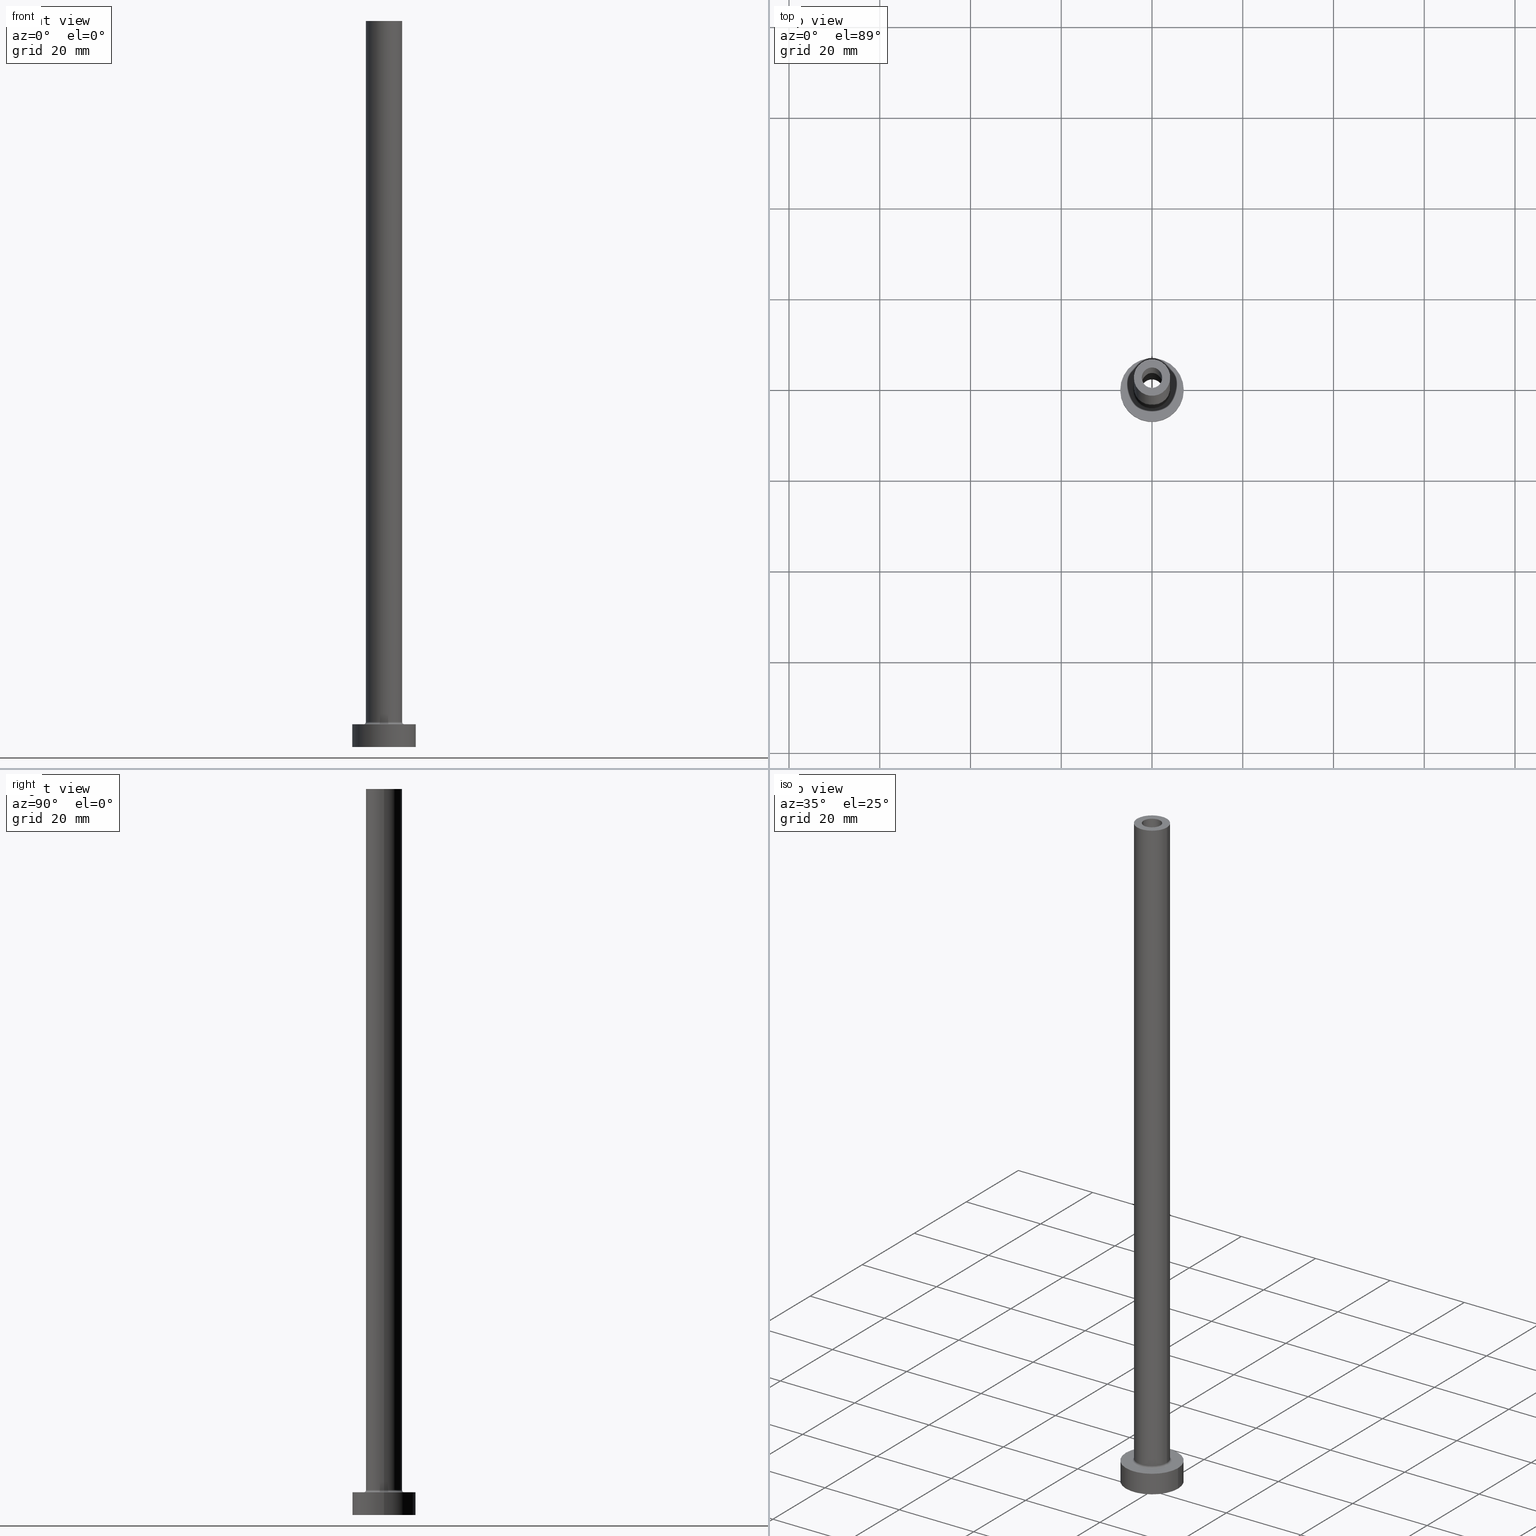
[diagram: canonical four-view strip — front | top / right | iso, engineering-drawing reading convention]
A machine part, canonical four-view strip (front | top / right | iso — engineering-drawing reading convention). The complete STEP part file that produces these views, byte-faithful:
ISO-10303-21;
HEADER;
FILE_DESCRIPTION (( 'STEP AP203' ),
    '1' );
FILE_NAME ('8017.STEP',
    '2023-02-13T17:23:19',
    ( '' ),
    ( '' ),
    'SwSTEP 2.0',
    'SolidWorks 2019',
    '' );
FILE_SCHEMA (( 'CONFIG_CONTROL_DESIGN' ));
ENDSEC;

DATA;
#1 = APPROVAL_ROLE ( '' ) ;
#2 = VERTEX_POINT ( 'NONE', #101 ) ;
#3 = CARTESIAN_POINT ( 'NONE',  ( -4.500000000000000888, 5.510910596163088569E-16, 5.000000000000002665 ) ) ;
#4 = DIRECTION ( 'NONE',  ( -0.000000000000000000, -0.000000000000000000, -1.000000000000000000 ) ) ;
#5 = VECTOR ( 'NONE', #183, 1000.000000000000000 ) ;
#6 = PERSON_AND_ORGANIZATION ( #212, #418 ) ;
#7 = FACE_OUTER_BOUND ( 'NONE', #78, .T. ) ;
#8 = CC_DESIGN_PERSON_AND_ORGANIZATION_ASSIGNMENT ( #191, #125, ( #273 ) ) ;
#9 = ORIENTED_EDGE ( 'NONE', *, *, #37, .F. ) ;
#10 = AXIS2_PLACEMENT_3D ( 'NONE', #140, #97, #241 ) ;
#11 = CARTESIAN_POINT ( 'NONE',  ( 4.500000000000000888, 0.000000000000000000, 5.500000000000005329 ) ) ;
#12 = ORIENTED_EDGE ( 'NONE', *, *, #145, .T. ) ;
#13 = FACE_OUTER_BOUND ( 'NONE', #427, .T. ) ;
#14 = EDGE_CURVE ( 'NONE', #58, #109, #235, .T. ) ;
#15 = DIRECTION ( 'NONE',  ( 1.000000000000000000, 0.000000000000000000, 0.000000000000000000 ) ) ;
#16 = COORDINATED_UNIVERSAL_TIME_OFFSET ( 1, 0, .AHEAD. ) ;
#17 = DIRECTION ( 'NONE',  ( 0.000000000000000000, 0.000000000000000000, -1.000000000000000000 ) ) ;
#18 = EDGE_CURVE ( 'NONE', #395, #258, #360, .T. ) ;
#19 = CARTESIAN_POINT ( 'NONE',  ( 4.000000000000000000, 4.898587196589412829E-16, 5.500000000000005329 ) ) ;
#20 = VERTEX_POINT ( 'NONE', #3 ) ;
#21 = PLANE ( 'NONE',  #236 ) ;
#22 = AXIS2_PLACEMENT_3D ( 'NONE', #68, #431, #184 ) ;
#23 = CC_DESIGN_APPROVAL ( #397, ( #273 ) ) ;
#24 = DIRECTION ( 'NONE',  ( 1.000000000000000000, 0.000000000000000000, -0.000000000000000000 ) ) ;
#25 = VERTEX_POINT ( 'NONE', #293 ) ;
#26 = DIRECTION ( 'NONE',  ( 0.000000000000000000, 0.000000000000000000, 1.000000000000000000 ) ) ;
#27 = DIRECTION ( 'NONE',  ( -0.000000000000000000, -0.000000000000000000, -1.000000000000000000 ) ) ;
#28 = CARTESIAN_POINT ( 'NONE',  ( 0.000000000000000000, 0.000000000000000000, 5.000000000000000000 ) ) ;
#29 = ORIENTED_EDGE ( 'NONE', *, *, #432, .T. ) ;
#30 = DIRECTION ( 'NONE',  ( -1.000000000000000000, 0.000000000000000000, 0.000000000000000000 ) ) ;
#31 = CYLINDRICAL_SURFACE ( 'NONE', #361, 7.000000000000000000 ) ;
#32 = MECHANICAL_CONTEXT ( 'NONE', #289, 'mechanical' ) ;
#33 = DIRECTION ( 'NONE',  ( 0.000000000000000000, 0.000000000000000000, 1.000000000000000000 ) ) ;
#34 = AXIS2_PLACEMENT_3D ( 'NONE', #442, #434, #441 ) ;
#35 = AXIS2_PLACEMENT_3D ( 'NONE', #96, #57, #355 ) ;
#36 = LINE ( 'NONE', #64, #5 ) ;
#37 = EDGE_CURVE ( 'NONE', #344, #2, #260, .T. ) ;
#38 = DIRECTION ( 'NONE',  ( 1.000000000000000000, 0.000000000000000000, 0.000000000000000000 ) ) ;
#39 = PERSON_AND_ORGANIZATION_ROLE ( 'design_owner' ) ;
#40 = VERTEX_POINT ( 'NONE', #221 ) ;
#41 =( LENGTH_UNIT ( ) NAMED_UNIT ( * ) SI_UNIT ( .MILLI., .METRE. ) );
#42 = AXIS2_PLACEMENT_3D ( 'NONE', #334, #4, #149 ) ;
#43 = ORIENTED_EDGE ( 'NONE', *, *, #311, .T. ) ;
#44 = DIRECTION ( 'NONE',  ( 0.000000000000000000, 0.000000000000000000, 1.000000000000000000 ) ) ;
#45 = EDGE_CURVE ( 'NONE', #239, #114, #53, .T. ) ;
#46 = DIRECTION ( 'NONE',  ( 0.000000000000000000, -1.000000000000000000, 0.000000000000000000 ) ) ;
#47 = ADVANCED_BREP_SHAPE_REPRESENTATION ( '8017', ( #199, #282 ), #93 ) ;
#48 = CC_DESIGN_DATE_AND_TIME_ASSIGNMENT ( #264, #310, ( #171 ) ) ;
#49 = AXIS2_PLACEMENT_3D ( 'NONE', #222, #33, #75 ) ;
#50 = CARTESIAN_POINT ( 'NONE',  ( 0.000000000000000000, 0.000000000000000000, 121.7882250993908713 ) ) ;
#51 = EDGE_CURVE ( 'NONE', #298, #403, #119, .T. ) ;
#52 = DIRECTION ( 'NONE',  ( 0.000000000000000000, 0.000000000000000000, -1.000000000000000000 ) ) ;
#53 = CIRCLE ( 'NONE', #330, 0.5000000000000004441 ) ;
#54 = CIRCLE ( 'NONE', #409, 2.399999999999999911 ) ;
#55 = ADVANCED_FACE ( 'NONE', ( #190 ), #245, .F. ) ;
#56 = ORIENTED_EDGE ( 'NONE', *, *, #89, .F. ) ;
#57 = DIRECTION ( 'NONE',  ( 0.000000000000000000, 0.000000000000000000, 1.000000000000000000 ) ) ;
#58 = VERTEX_POINT ( 'NONE', #300 ) ;
#59 = ORIENTED_EDGE ( 'NONE', *, *, #145, .F. ) ;
#60 = FACE_OUTER_BOUND ( 'NONE', #449, .T. ) ;
#61 = ORIENTED_EDGE ( 'NONE', *, *, #375, .T. ) ;
#62 = TOROIDAL_SURFACE ( 'NONE', #35, 4.500000000000000888, 0.5000000000000000000 ) ;
#63 = LOCAL_TIME ( 18, 23, 19.00000000000000000, #84 ) ;
#64 = CARTESIAN_POINT ( 'NONE',  ( -2.250000000000000000, 0.000000000000000000, 160.0000000000000000 ) ) ;
#65 = ORIENTED_EDGE ( 'NONE', *, *, #18, .F. ) ;
#66 = DIRECTION ( 'NONE',  ( -0.000000000000000000, -0.000000000000000000, -1.000000000000000000 ) ) ;
#67 = COORDINATED_UNIVERSAL_TIME_OFFSET ( 1, 0, .AHEAD. ) ;
#68 = CARTESIAN_POINT ( 'NONE',  ( 0.000000000000000000, 0.000000000000000000, 5.000000000000000000 ) ) ;
#69 = AXIS2_PLACEMENT_3D ( 'NONE', #72, #113, #73 ) ;
#70 = SECURITY_CLASSIFICATION ( '', '', #303 ) ;
#71 = APPROVAL_DATE_TIME ( #215, #308 ) ;
#72 = CARTESIAN_POINT ( 'NONE',  ( 0.000000000000000000, 0.000000000000000000, 115.0000000000000000 ) ) ;
#73 = DIRECTION ( 'NONE',  ( 1.000000000000000000, 0.000000000000000000, -0.000000000000000000 ) ) ;
#74 = DIRECTION ( 'NONE',  ( 1.000000000000000000, 0.000000000000000000, 0.000000000000000000 ) ) ;
#75 = DIRECTION ( 'NONE',  ( 1.000000000000000000, 0.000000000000000000, 0.000000000000000000 ) ) ;
#76 = AXIS2_PLACEMENT_3D ( 'NONE', #380, #44, #399 ) ;
#77 = EDGE_CURVE ( 'NONE', #403, #298, #332, .T. ) ;
#78 = EDGE_LOOP ( 'NONE', ( #158, #132, #400, #206 ) ) ;
#79 = APPROVAL_DATE_TIME ( #262, #157 ) ;
#80 = VERTEX_POINT ( 'NONE', #266 ) ;
#81 = DATE_AND_TIME ( #121, #63 ) ;
#82 = FACE_OUTER_BOUND ( 'NONE', #136, .T. ) ;
#83 = DIRECTION ( 'NONE',  ( 1.000000000000000000, 0.000000000000000000, 0.000000000000000000 ) ) ;
#84 = COORDINATED_UNIVERSAL_TIME_OFFSET ( 1, 0, .AHEAD. ) ;
#85 = VECTOR ( 'NONE', #66, 1000.000000000000000 ) ;
#86 = APPROVAL_PERSON_ORGANIZATION ( #458, #308, #1 ) ;
#87 = DIRECTION ( 'NONE',  ( 1.000000000000000000, 0.000000000000000000, 0.000000000000000000 ) ) ;
#88 = ORIENTED_EDGE ( 'NONE', *, *, #186, .T. ) ;
#89 = EDGE_CURVE ( 'NONE', #80, #40, #251, .T. ) ;
#90 = DIRECTION ( 'NONE',  ( 0.000000000000000000, 0.000000000000000000, 1.000000000000000000 ) ) ;
#91 = FACE_BOUND ( 'NONE', #233, .T. ) ;
#92 = CIRCLE ( 'NONE', #459, 4.000000000000000000 ) ;
#93 =( GEOMETRIC_REPRESENTATION_CONTEXT ( 3 ) GLOBAL_UNCERTAINTY_ASSIGNED_CONTEXT ( ( #110 ) ) GLOBAL_UNIT_ASSIGNED_CONTEXT ( ( #41, #424, #218 ) ) REPRESENTATION_CONTEXT ( 'NONE', 'WORKASPACE' ) );
#94 = DIRECTION ( 'NONE',  ( 0.000000000000000000, 0.000000000000000000, 1.000000000000000000 ) ) ;
#95 = ORIENTED_EDGE ( 'NONE', *, *, #271, .F. ) ;
#96 = CARTESIAN_POINT ( 'NONE',  ( 0.000000000000000000, 0.000000000000000000, 5.500000000000005329 ) ) ;
#97 = DIRECTION ( 'NONE',  ( 0.000000000000000000, 0.000000000000000000, -1.000000000000000000 ) ) ;
#98 = ORIENTED_EDGE ( 'NONE', *, *, #244, .T. ) ;
#99 = EDGE_CURVE ( 'NONE', #239, #25, #92, .T. ) ;
#100 = DIRECTION ( 'NONE',  ( 1.000000000000000000, 0.000000000000000000, 0.000000000000000000 ) ) ;
#101 = CARTESIAN_POINT ( 'NONE',  ( 2.399999999999999911, 2.939152317953647106E-16, 0.000000000000000000 ) ) ;
#102 = ADVANCED_FACE ( 'NONE', ( #323, #371 ), #169, .T. ) ;
#103 = FACE_OUTER_BOUND ( 'NONE', #329, .T. ) ;
#104 = CYLINDRICAL_SURFACE ( 'NONE', #120, 7.000000000000000000 ) ;
#105 = VECTOR ( 'NONE', #419, 1000.000000000000000 ) ;
#106 = LOCAL_TIME ( 18, 23, 19.00000000000000000, #339 ) ;
#107 = CARTESIAN_POINT ( 'NONE',  ( -7.000000000000000000, 0.000000000000000000, 5.000000000000000000 ) ) ;
#108 = CARTESIAN_POINT ( 'NONE',  ( 0.000000000000000000, 0.000000000000000000, 5.000000000000000000 ) ) ;
#109 = VERTEX_POINT ( 'NONE', #322 ) ;
#110 = UNCERTAINTY_MEASURE_WITH_UNIT (LENGTH_MEASURE( 1.000000000000000082E-05 ), #41, 'distance_accuracy_value', 'NONE');
#111 = AXIS2_PLACEMENT_3D ( 'NONE', #209, #328, #363 ) ;
#112 = CC_DESIGN_SECURITY_CLASSIFICATION ( #70, ( #273 ) ) ;
#113 = DIRECTION ( 'NONE',  ( 0.000000000000000000, 0.000000000000000000, 1.000000000000000000 ) ) ;
#114 = VERTEX_POINT ( 'NONE', #195 ) ;
#115 = CARTESIAN_POINT ( 'NONE',  ( 0.000000000000000000, 0.000000000000000000, 5.500000000000005329 ) ) ;
#116 = DIRECTION ( 'NONE',  ( 1.000000000000000000, 0.000000000000000000, 0.000000000000000000 ) ) ;
#117 = ORIENTED_EDGE ( 'NONE', *, *, #18, .T. ) ;
#118 = CALENDAR_DATE ( 2023, 13, 2 ) ;
#119 = CIRCLE ( 'NONE', #34, 4.000000000000000000 ) ;
#120 = AXIS2_PLACEMENT_3D ( 'NONE', #28, #205, #175 ) ;
#121 = CALENDAR_DATE ( 2023, 13, 2 ) ;
#122 = LOCAL_TIME ( 18, 23, 19.00000000000000000, #67 ) ;
#123 = DIRECTION ( 'NONE',  ( 0.000000000000000000, 0.000000000000000000, 1.000000000000000000 ) ) ;
#124 = EDGE_CURVE ( 'NONE', #395, #80, #137, .T. ) ;
#125 = PERSON_AND_ORGANIZATION_ROLE ( 'creator' ) ;
#126 = DIRECTION ( 'NONE',  ( 0.000000000000000000, 0.000000000000000000, 1.000000000000000000 ) ) ;
#127 = ORIENTED_EDGE ( 'NONE', *, *, #278, .T. ) ;
#128 = AXIS2_PLACEMENT_3D ( 'NONE', #255, #364, #74 ) ;
#129 = ORIENTED_EDGE ( 'NONE', *, *, #425, .F. ) ;
#130 = DIRECTION ( 'NONE',  ( 1.000000000000000000, 0.000000000000000000, 0.000000000000000000 ) ) ;
#131 = DIRECTION ( 'NONE',  ( 0.000000000000000000, 0.000000000000000000, -1.000000000000000000 ) ) ;
#132 = ORIENTED_EDGE ( 'NONE', *, *, #425, .T. ) ;
#133 = EDGE_LOOP ( 'NONE', ( #43, #29 ) ) ;
#134 = EDGE_CURVE ( 'NONE', #109, #58, #373, .T. ) ;
#135 = ORIENTED_EDGE ( 'NONE', *, *, #438, .F. ) ;
#136 = EDGE_LOOP ( 'NONE', ( #249, #318, #210, #187 ) ) ;
#137 = LINE ( 'NONE', #384, #281 ) ;
#138 = CARTESIAN_POINT ( 'NONE',  ( 7.000000000000000000, 8.572527594031473190E-16, 5.000000000000000000 ) ) ;
#139 = CIRCLE ( 'NONE', #351, 2.399999999999999911 ) ;
#140 = CARTESIAN_POINT ( 'NONE',  ( 0.000000000000000000, 0.000000000000000000, 160.0000000000000000 ) ) ;
#141 = ADVANCED_FACE ( 'NONE', ( #13 ), #379, .F. ) ;
#142 = FACE_BOUND ( 'NONE', #343, .T. ) ;
#143 = PRODUCT ( '8017', '8017', '', ( #32 ) ) ;
#144 = DIRECTION ( 'NONE',  ( -0.000000000000000000, -0.000000000000000000, -1.000000000000000000 ) ) ;
#145 = EDGE_CURVE ( 'NONE', #277, #2, #160, .T. ) ;
#146 = APPROVAL_STATUS ( 'not_yet_approved' ) ;
#147 = AXIS2_PLACEMENT_3D ( 'NONE', #203, #359, #242 ) ;
#148 = AXIS2_PLACEMENT_3D ( 'NONE', #50, #52, #313 ) ;
#149 = DIRECTION ( 'NONE',  ( 1.000000000000000000, 0.000000000000000000, 0.000000000000000000 ) ) ;
#150 = DIRECTION ( 'NONE',  ( -1.000000000000000000, 0.000000000000000000, 0.000000000000000000 ) ) ;
#151 = EDGE_LOOP ( 'NONE', ( #374, #433, #452, #135 ) ) ;
#152 = CARTESIAN_POINT ( 'NONE',  ( 0.000000000000000000, 0.000000000000000000, 0.000000000000000000 ) ) ;
#153 = DIRECTION ( 'NONE',  ( 0.000000000000000000, 0.000000000000000000, 1.000000000000000000 ) ) ;
#154 = CIRCLE ( 'NONE', #207, 7.000000000000000000 ) ;
#155 = PERSON_AND_ORGANIZATION ( #212, #418 ) ;
#156 = CIRCLE ( 'NONE', #22, 4.500000000000000888 ) ;
#157 = APPROVAL ( #259, 'NEUR�EN�' ) ;
#158 = ORIENTED_EDGE ( 'NONE', *, *, #77, .F. ) ;
#159 = CALENDAR_DATE ( 2023, 13, 2 ) ;
#160 = LINE ( 'NONE', #346, #342 ) ;
#161 = LINE ( 'NONE', #107, #290 ) ;
#162 = ORIENTED_EDGE ( 'NONE', *, *, #232, .T. ) ;
#163 = FACE_BOUND ( 'NONE', #383, .T. ) ;
#164 = CIRCLE ( 'NONE', #417, 0.5000000000000004441 ) ;
#165 = CARTESIAN_POINT ( 'NONE',  ( 0.000000000000000000, 0.000000000000000000, 160.0000000000000000 ) ) ;
#166 = EDGE_LOOP ( 'NONE', ( #320, #357, #408, #167 ) ) ;
#167 = ORIENTED_EDGE ( 'NONE', *, *, #244, .F. ) ;
#168 = CARTESIAN_POINT ( 'NONE',  ( -4.500000000000000888, 5.510910596163089556E-16, 5.500000000000005329 ) ) ;
#169 = PLANE ( 'NONE',  #445 ) ;
#170 = CARTESIAN_POINT ( 'NONE',  ( -4.000000000000000000, 0.000000000000000000, 160.0000000000000000 ) ) ;
#171 = PRODUCT_DEFINITION ( 'NEZN�M�', '', #273, #220 ) ;
#172 = ORIENTED_EDGE ( 'NONE', *, *, #232, .F. ) ;
#173 = CYLINDRICAL_SURFACE ( 'NONE', #430, 2.399999999999999911 ) ;
#174 = CARTESIAN_POINT ( 'NONE',  ( 0.000000000000000000, 0.000000000000000000, 115.0000000000000000 ) ) ;
#175 = DIRECTION ( 'NONE',  ( -1.000000000000000000, 0.000000000000000000, 0.000000000000000000 ) ) ;
#176 = FACE_OUTER_BOUND ( 'NONE', #166, .T. ) ;
#177 = DIRECTION ( 'NONE',  ( 1.000000000000000000, 0.000000000000000000, 0.000000000000000000 ) ) ;
#178 = FACE_OUTER_BOUND ( 'NONE', #317, .T. ) ;
#179 = PERSON_AND_ORGANIZATION ( #212, #418 ) ;
#180 = AXIS2_PLACEMENT_3D ( 'NONE', #406, #123, #316 ) ;
#181 = CC_DESIGN_APPROVAL ( #157, ( #70 ) ) ;
#182 = ORIENTED_EDGE ( 'NONE', *, *, #311, .F. ) ;
#183 = DIRECTION ( 'NONE',  ( 0.000000000000000000, 0.000000000000000000, -1.000000000000000000 ) ) ;
#184 = DIRECTION ( 'NONE',  ( 1.000000000000000000, 0.000000000000000000, 0.000000000000000000 ) ) ;
#185 = PERSON_AND_ORGANIZATION ( #212, #418 ) ;
#186 = EDGE_CURVE ( 'NONE', #25, #20, #164, .T. ) ;
#187 = ORIENTED_EDGE ( 'NONE', *, *, #204, .F. ) ;
#188 = DIRECTION ( 'NONE',  ( 0.000000000000000000, 0.000000000000000000, 1.000000000000000000 ) ) ;
#189 = PERSON_AND_ORGANIZATION ( #212, #418 ) ;
#190 = FACE_OUTER_BOUND ( 'NONE', #377, .T. ) ;
#191 = PERSON_AND_ORGANIZATION ( #212, #418 ) ;
#192 = CARTESIAN_POINT ( 'NONE',  ( -2.399999999999999911, 0.000000000000000000, 0.000000000000000000 ) ) ;
#193 = ORIENTED_EDGE ( 'NONE', *, *, #89, .T. ) ;
#194 = EDGE_LOOP ( 'NONE', ( #95, #268 ) ) ;
#195 = CARTESIAN_POINT ( 'NONE',  ( 4.500000000000000888, 0.000000000000000000, 5.000000000000002665 ) ) ;
#196 = AXIS2_PLACEMENT_3D ( 'NONE', #152, #252, #396 ) ;
#197 = CIRCLE ( 'NONE', #49, 7.000000000000000000 ) ;
#198 = FACE_OUTER_BOUND ( 'NONE', #133, .T. ) ;
#199 = MANIFOLD_SOLID_BREP ( 'Odebrat vysunut�m4', #288 ) ;
#200 = ADVANCED_FACE ( 'NONE', ( #163, #198 ), #21, .T. ) ;
#201 = ORIENTED_EDGE ( 'NONE', *, *, #124, .F. ) ;
#202 = EDGE_LOOP ( 'NONE', ( #201, #117, #338, #56 ) ) ;
#203 = CARTESIAN_POINT ( 'NONE',  ( 0.000000000000000000, 0.000000000000000000, 160.0000000000000000 ) ) ;
#204 = EDGE_CURVE ( 'NONE', #20, #114, #156, .T. ) ;
#205 = DIRECTION ( 'NONE',  ( -0.000000000000000000, -0.000000000000000000, -1.000000000000000000 ) ) ;
#206 = ORIENTED_EDGE ( 'NONE', *, *, #375, .F. ) ;
#207 = AXIS2_PLACEMENT_3D ( 'NONE', #214, #416, #366 ) ;
#208 = LINE ( 'NONE', #348, #105 ) ;
#209 = CARTESIAN_POINT ( 'NONE',  ( 0.000000000000000000, 0.000000000000000000, 160.0000000000000000 ) ) ;
#210 = ORIENTED_EDGE ( 'NONE', *, *, #45, .T. ) ;
#211 = CARTESIAN_POINT ( 'NONE',  ( 2.250000000000000000, 2.755455298081543792E-16, 160.0000000000000000 ) ) ;
#212 = PERSON ( 'NEUR�EN�', 'NEUR�EN�', 'NEUR�EN�', ('NEUR�EN�'), ('NEUR�EN�'), ('NEUR�EN�') ) ;
#213 = EDGE_CURVE ( 'NONE', #114, #20, #225, .T. ) ;
#214 = CARTESIAN_POINT ( 'NONE',  ( 0.000000000000000000, 0.000000000000000000, 5.000000000000000000 ) ) ;
#215 = DATE_AND_TIME ( #429, #122 ) ;
#216 = AXIS2_PLACEMENT_3D ( 'NONE', #306, #439, #83 ) ;
#217 = CC_DESIGN_PERSON_AND_ORGANIZATION_ASSIGNMENT ( #185, #335, ( #171 ) ) ;
#218 =( NAMED_UNIT ( * ) SI_UNIT ( $, .STERADIAN. ) SOLID_ANGLE_UNIT ( ) );
#219 = CC_DESIGN_PERSON_AND_ORGANIZATION_ASSIGNMENT ( #436, #440, ( #70 ) ) ;
#220 = DESIGN_CONTEXT ( 'detailed design', #420, 'design' ) ;
#221 = CARTESIAN_POINT ( 'NONE',  ( -2.250000000000000000, 0.000000000000000000, 115.0000000000000000 ) ) ;
#222 = CARTESIAN_POINT ( 'NONE',  ( 0.000000000000000000, 0.000000000000000000, 5.000000000000000000 ) ) ;
#223 = EDGE_CURVE ( 'NONE', #25, #239, #381, .T. ) ;
#224 = CARTESIAN_POINT ( 'NONE',  ( 0.000000000000000000, 0.000000000000000000, 5.500000000000005329 ) ) ;
#225 = CIRCLE ( 'NONE', #42, 4.500000000000000888 ) ;
#226 = DATE_AND_TIME ( #159, #382 ) ;
#227 = EDGE_CURVE ( 'NONE', #258, #395, #352, .T. ) ;
#228 = APPROVAL_DATE_TIME ( #226, #397 ) ;
#229 = AXIS2_PLACEMENT_3D ( 'NONE', #356, #26, #283 ) ;
#230 = CARTESIAN_POINT ( 'NONE',  ( 0.000000000000000000, 0.000000000000000000, 160.0000000000000000 ) ) ;
#231 = ORIENTED_EDGE ( 'NONE', *, *, #227, .F. ) ;
#232 = EDGE_CURVE ( 'NONE', #450, #344, #294, .T. ) ;
#233 = EDGE_LOOP ( 'NONE', ( #9, #414 ) ) ;
#234 = ORIENTED_EDGE ( 'NONE', *, *, #213, .F. ) ;
#235 = CIRCLE ( 'NONE', #350, 7.000000000000000000 ) ;
#236 = AXIS2_PLACEMENT_3D ( 'NONE', #315, #353, #24 ) ;
#237 = EDGE_CURVE ( 'NONE', #354, #58, #208, .T. ) ;
#238 = CC_DESIGN_DATE_AND_TIME_ASSIGNMENT ( #81, #341, ( #70 ) ) ;
#239 = VERTEX_POINT ( 'NONE', #19 ) ;
#240 = DIRECTION ( 'NONE',  ( 1.000000000000000000, 0.000000000000000000, -0.000000000000000000 ) ) ;
#241 = DIRECTION ( 'NONE',  ( -1.000000000000000000, 0.000000000000000000, 0.000000000000000000 ) ) ;
#242 = DIRECTION ( 'NONE',  ( 1.000000000000000000, 0.000000000000000000, 0.000000000000000000 ) ) ;
#243 = LINE ( 'NONE', #170, #305 ) ;
#244 = EDGE_CURVE ( 'NONE', #387, #109, #161, .T. ) ;
#245 = TOROIDAL_SURFACE ( 'NONE', #216, 4.500000000000000888, 0.5000000000000000000 ) ;
#246 = CC_DESIGN_APPROVAL ( #308, ( #171 ) ) ;
#247 = FACE_OUTER_BOUND ( 'NONE', #151, .T. ) ;
#248 = CYLINDRICAL_SURFACE ( 'NONE', #111, 2.250000000000000000 ) ;
#249 = ORIENTED_EDGE ( 'NONE', *, *, #186, .F. ) ;
#250 = CC_DESIGN_PERSON_AND_ORGANIZATION_ASSIGNMENT ( #179, #39, ( #143 ) ) ;
#251 = CIRCLE ( 'NONE', #76, 2.250000000000000000 ) ;
#252 = DIRECTION ( 'NONE',  ( -0.000000000000000000, -0.000000000000000000, -1.000000000000000000 ) ) ;
#253 = ORIENTED_EDGE ( 'NONE', *, *, #213, .T. ) ;
#254 = CARTESIAN_POINT ( 'NONE',  ( -2.399999999999999911, 0.000000000000000000, 115.0000000000000000 ) ) ;
#255 = CARTESIAN_POINT ( 'NONE',  ( 0.000000000000000000, 0.000000000000000000, 160.0000000000000000 ) ) ;
#256 = APPLICATION_PROTOCOL_DEFINITION ( 'international standard', 'config_control_design', 1994, #289 ) ;
#257 = DIRECTION ( 'NONE',  ( 0.000000000000000000, 0.000000000000000000, -1.000000000000000000 ) ) ;
#258 = VERTEX_POINT ( 'NONE', #413 ) ;
#259 = APPROVAL_STATUS ( 'not_yet_approved' ) ;
#260 = CIRCLE ( 'NONE', #196, 2.399999999999999911 ) ;
#261 = AXIS2_PLACEMENT_3D ( 'NONE', #115, #153, #426 ) ;
#262 = DATE_AND_TIME ( #378, #292 ) ;
#263 = CARTESIAN_POINT ( 'NONE',  ( 0.000000000000000000, 0.000000000000000000, 160.0000000000000000 ) ) ;
#264 = DATE_AND_TIME ( #118, #106 ) ;
#265 = DIRECTION ( 'NONE',  ( -0.000000000000000000, -0.000000000000000000, -1.000000000000000000 ) ) ;
#266 = CARTESIAN_POINT ( 'NONE',  ( 2.250000000000000000, 2.755455298081543792E-16, 115.0000000000000000 ) ) ;
#267 = PERSON_AND_ORGANIZATION_ROLE ( 'design_supplier' ) ;
#268 = ORIENTED_EDGE ( 'NONE', *, *, #345, .F. ) ;
#269 = DIRECTION ( 'NONE',  ( 0.000000000000000000, 0.000000000000000000, 1.000000000000000000 ) ) ;
#270 = CIRCLE ( 'NONE', #337, 2.250000000000000000 ) ;
#271 = EDGE_CURVE ( 'NONE', #450, #277, #54, .T. ) ;
#272 = COORDINATED_UNIVERSAL_TIME_OFFSET ( 1, 0, .AHEAD. ) ;
#273 = PRODUCT_DEFINITION_FORMATION_WITH_SPECIFIED_SOURCE ( 'LIBOVOLN�', '', #143, .NOT_KNOWN. ) ;
#274 = DIRECTION ( 'NONE',  ( -1.000000000000000000, 1.224646799147351482E-16, 0.000000000000000000 ) ) ;
#275 = ORIENTED_EDGE ( 'NONE', *, *, #134, .T. ) ;
#276 = ORIENTED_EDGE ( 'NONE', *, *, #345, .T. ) ;
#277 = VERTEX_POINT ( 'NONE', #446 ) ;
#278 = EDGE_CURVE ( 'NONE', #2, #344, #139, .T. ) ;
#279 = ORIENTED_EDGE ( 'NONE', *, *, #237, .F. ) ;
#280 = EDGE_LOOP ( 'NONE', ( #231, #65 ) ) ;
#281 = VECTOR ( 'NONE', #131, 1000.000000000000000 ) ;
#282 = AXIS2_PLACEMENT_3D ( 'NONE', #331, #333, #116 ) ;
#283 = DIRECTION ( 'NONE',  ( 1.000000000000000000, 0.000000000000000000, -0.000000000000000000 ) ) ;
#284 = DIRECTION ( 'NONE',  ( -0.000000000000000000, -0.000000000000000000, -1.000000000000000000 ) ) ;
#285 = ORIENTED_EDGE ( 'NONE', *, *, #223, .F. ) ;
#286 = FACE_OUTER_BOUND ( 'NONE', #194, .T. ) ;
#287 = LINE ( 'NONE', #391, #85 ) ;
#288 = CLOSED_SHELL ( 'NONE', ( #386, #376, #55, #326, #407, #297, #200, #368, #388, #102, #347, #141, #304, #296 ) ) ;
#289 = APPLICATION_CONTEXT ( 'configuration controlled 3d designs of mechanical parts and assemblies' ) ;
#290 = VECTOR ( 'NONE', #284, 1000.000000000000000 ) ;
#291 = CARTESIAN_POINT ( 'NONE',  ( 0.000000000000000000, 0.000000000000000000, 0.000000000000000000 ) ) ;
#292 = LOCAL_TIME ( 18, 23, 19.00000000000000000, #272 ) ;
#293 = CARTESIAN_POINT ( 'NONE',  ( -4.000000000000000000, 0.000000000000000000, 5.500000000000005329 ) ) ;
#294 = LINE ( 'NONE', #421, #437 ) ;
#295 = CARTESIAN_POINT ( 'NONE',  ( -7.000000000000000000, 0.000000000000000000, 5.000000000000000000 ) ) ;
#296 = ADVANCED_FACE ( 'NONE', ( #456 ), #312, .F. ) ;
#297 = ADVANCED_FACE ( 'NONE', ( #60 ), #104, .T. ) ;
#298 = VERTEX_POINT ( 'NONE', #325 ) ;
#299 = AXIS2_PLACEMENT_3D ( 'NONE', #457, #365, #30 ) ;
#300 = CARTESIAN_POINT ( 'NONE',  ( 7.000000000000000000, 8.572527594031473190E-16, 0.000000000000000000 ) ) ;
#301 = SHAPE_DEFINITION_REPRESENTATION ( #390, #47 ) ;
#302 = ORIENTED_EDGE ( 'NONE', *, *, #77, .T. ) ;
#303 = SECURITY_CLASSIFICATION_LEVEL ( 'unclassified' ) ;
#304 = ADVANCED_FACE ( 'NONE', ( #142, #286 ), #389, .F. ) ;
#305 = VECTOR ( 'NONE', #27, 1000.000000000000000 ) ;
#306 = CARTESIAN_POINT ( 'NONE',  ( 0.000000000000000000, 0.000000000000000000, 5.500000000000005329 ) ) ;
#307 = APPROVAL_PERSON_ORGANIZATION ( #155, #157, #401 ) ;
#308 = APPROVAL ( #146, 'NEUR�EN�' ) ;
#309 = EDGE_LOOP ( 'NONE', ( #435, #302 ) ) ;
#310 = DATE_TIME_ROLE ( 'creation_date' ) ;
#311 = EDGE_CURVE ( 'NONE', #387, #354, #197, .T. ) ;
#312 = CYLINDRICAL_SURFACE ( 'NONE', #10, 2.250000000000000000 ) ;
#313 = DIRECTION ( 'NONE',  ( -1.000000000000000000, 0.000000000000000000, 0.000000000000000000 ) ) ;
#314 = AXIS2_PLACEMENT_3D ( 'NONE', #165, #265, #402 ) ;
#315 = CARTESIAN_POINT ( 'NONE',  ( 0.000000000000000000, 0.000000000000000000, 5.000000000000000000 ) ) ;
#316 = DIRECTION ( 'NONE',  ( 1.000000000000000000, 0.000000000000000000, 0.000000000000000000 ) ) ;
#317 = EDGE_LOOP ( 'NONE', ( #129, #447, #61, #393 ) ) ;
#318 = ORIENTED_EDGE ( 'NONE', *, *, #99, .F. ) ;
#319 = CC_DESIGN_PERSON_AND_ORGANIZATION_ASSIGNMENT ( #189, #267, ( #273 ) ) ;
#320 = ORIENTED_EDGE ( 'NONE', *, *, #432, .F. ) ;
#321 = ORIENTED_EDGE ( 'NONE', *, *, #14, .F. ) ;
#322 = CARTESIAN_POINT ( 'NONE',  ( -7.000000000000000000, 0.000000000000000000, 0.000000000000000000 ) ) ;
#323 = FACE_BOUND ( 'NONE', #280, .T. ) ;
#324 = DIRECTION ( 'NONE',  ( 0.000000000000000000, 0.000000000000000000, -1.000000000000000000 ) ) ;
#325 = CARTESIAN_POINT ( 'NONE',  ( -4.000000000000000000, 0.000000000000000000, 160.0000000000000000 ) ) ;
#326 = ADVANCED_FACE ( 'NONE', ( #7 ), #340, .T. ) ;
#327 = DIRECTION ( 'NONE',  ( -0.000000000000000000, -0.000000000000000000, -1.000000000000000000 ) ) ;
#328 = DIRECTION ( 'NONE',  ( 0.000000000000000000, 0.000000000000000000, -1.000000000000000000 ) ) ;
#329 = EDGE_LOOP ( 'NONE', ( #358, #321 ) ) ;
#330 = AXIS2_PLACEMENT_3D ( 'NONE', #11, #46, #257 ) ;
#331 = CARTESIAN_POINT ( 'NONE',  ( 0.000000000000000000, 0.000000000000000000, 0.000000000000000000 ) ) ;
#332 = CIRCLE ( 'NONE', #370, 4.000000000000000000 ) ;
#333 = DIRECTION ( 'NONE',  ( 0.000000000000000000, 0.000000000000000000, 1.000000000000000000 ) ) ;
#334 = CARTESIAN_POINT ( 'NONE',  ( 0.000000000000000000, 0.000000000000000000, 5.000000000000000000 ) ) ;
#335 = PERSON_AND_ORGANIZATION_ROLE ( 'creator' ) ;
#336 = DIRECTION ( 'NONE',  ( 0.000000000000000000, 0.000000000000000000, 1.000000000000000000 ) ) ;
#337 = AXIS2_PLACEMENT_3D ( 'NONE', #392, #336, #38 ) ;
#338 = ORIENTED_EDGE ( 'NONE', *, *, #438, .T. ) ;
#339 = COORDINATED_UNIVERSAL_TIME_OFFSET ( 1, 0, .AHEAD. ) ;
#340 = CYLINDRICAL_SURFACE ( 'NONE', #314, 4.000000000000000000 ) ;
#341 = DATE_TIME_ROLE ( 'classification_date' ) ;
#342 = VECTOR ( 'NONE', #17, 1000.000000000000000 ) ;
#343 = EDGE_LOOP ( 'NONE', ( #398, #193 ) ) ;
#344 = VERTEX_POINT ( 'NONE', #192 ) ;
#345 = EDGE_CURVE ( 'NONE', #277, #450, #405, .T. ) ;
#346 = CARTESIAN_POINT ( 'NONE',  ( 2.399999999999999911, 2.939152317953647106E-16, 121.7882250993908713 ) ) ;
#347 = ADVANCED_FACE ( 'NONE', ( #82 ), #62, .F. ) ;
#348 = CARTESIAN_POINT ( 'NONE',  ( 7.000000000000000000, 8.572527594031473190E-16, 5.000000000000000000 ) ) ;
#349 = CARTESIAN_POINT ( 'NONE',  ( 0.000000000000000000, 0.000000000000000000, 0.000000000000000000 ) ) ;
#350 = AXIS2_PLACEMENT_3D ( 'NONE', #410, #94, #130 ) ;
#351 = AXIS2_PLACEMENT_3D ( 'NONE', #291, #327, #15 ) ;
#352 = CIRCLE ( 'NONE', #128, 2.250000000000000000 ) ;
#353 = DIRECTION ( 'NONE',  ( 0.000000000000000000, 0.000000000000000000, 1.000000000000000000 ) ) ;
#354 = VERTEX_POINT ( 'NONE', #138 ) ;
#355 = DIRECTION ( 'NONE',  ( 1.000000000000000000, 0.000000000000000000, 0.000000000000000000 ) ) ;
#356 = CARTESIAN_POINT ( 'NONE',  ( 0.000000000000000000, 0.000000000000000000, 0.000000000000000000 ) ) ;
#357 = ORIENTED_EDGE ( 'NONE', *, *, #237, .T. ) ;
#358 = ORIENTED_EDGE ( 'NONE', *, *, #134, .F. ) ;
#359 = DIRECTION ( 'NONE',  ( 0.000000000000000000, 0.000000000000000000, 1.000000000000000000 ) ) ;
#360 = CIRCLE ( 'NONE', #147, 2.250000000000000000 ) ;
#361 = AXIS2_PLACEMENT_3D ( 'NONE', #108, #144, #415 ) ;
#362 = DIRECTION ( 'NONE',  ( 0.000000000000000000, 0.000000000000000000, 1.000000000000000000 ) ) ;
#363 = DIRECTION ( 'NONE',  ( -1.000000000000000000, 0.000000000000000000, 0.000000000000000000 ) ) ;
#364 = DIRECTION ( 'NONE',  ( 0.000000000000000000, 0.000000000000000000, 1.000000000000000000 ) ) ;
#365 = DIRECTION ( 'NONE',  ( -0.000000000000000000, -0.000000000000000000, -1.000000000000000000 ) ) ;
#366 = DIRECTION ( 'NONE',  ( 1.000000000000000000, 0.000000000000000000, 0.000000000000000000 ) ) ;
#367 = ORIENTED_EDGE ( 'NONE', *, *, #37, .T. ) ;
#368 = ADVANCED_FACE ( 'NONE', ( #91, #103 ), #451, .F. ) ;
#369 = APPLICATION_PROTOCOL_DEFINITION ( 'international standard', 'config_control_design', 1994, #420 ) ;
#370 = AXIS2_PLACEMENT_3D ( 'NONE', #263, #269, #87 ) ;
#371 = FACE_OUTER_BOUND ( 'NONE', #309, .T. ) ;
#372 = APPROVAL_STATUS ( 'not_yet_approved' ) ;
#373 = CIRCLE ( 'NONE', #453, 7.000000000000000000 ) ;
#374 = ORIENTED_EDGE ( 'NONE', *, *, #227, .T. ) ;
#375 = EDGE_CURVE ( 'NONE', #298, #25, #243, .T. ) ;
#376 = ADVANCED_FACE ( 'NONE', ( #455 ), #173, .F. ) ;
#377 = EDGE_LOOP ( 'NONE', ( #285, #88, #234, #423 ) ) ;
#378 = CALENDAR_DATE ( 2023, 13, 2 ) ;
#379 = CYLINDRICAL_SURFACE ( 'NONE', #148, 2.399999999999999911 ) ;
#380 = CARTESIAN_POINT ( 'NONE',  ( 0.000000000000000000, 0.000000000000000000, 115.0000000000000000 ) ) ;
#381 = CIRCLE ( 'NONE', #261, 4.000000000000000000 ) ;
#382 = LOCAL_TIME ( 18, 23, 19.00000000000000000, #16 ) ;
#383 = EDGE_LOOP ( 'NONE', ( #253, #385 ) ) ;
#384 = CARTESIAN_POINT ( 'NONE',  ( 2.250000000000000000, 2.755455298081543792E-16, 160.0000000000000000 ) ) ;
#385 = ORIENTED_EDGE ( 'NONE', *, *, #204, .T. ) ;
#386 = ADVANCED_FACE ( 'NONE', ( #247 ), #248, .F. ) ;
#387 = VERTEX_POINT ( 'NONE', #295 ) ;
#388 = ADVANCED_FACE ( 'NONE', ( #178 ), #394, .T. ) ;
#389 = PLANE ( 'NONE',  #69 ) ;
#390 = PRODUCT_DEFINITION_SHAPE ( 'NONE', 'NONE',  #171 ) ;
#391 = CARTESIAN_POINT ( 'NONE',  ( 4.000000000000000000, 4.898587196589412829E-16, 160.0000000000000000 ) ) ;
#392 = CARTESIAN_POINT ( 'NONE',  ( 0.000000000000000000, 0.000000000000000000, 115.0000000000000000 ) ) ;
#393 = ORIENTED_EDGE ( 'NONE', *, *, #223, .T. ) ;
#394 = CYLINDRICAL_SURFACE ( 'NONE', #299, 4.000000000000000000 ) ;
#395 = VERTEX_POINT ( 'NONE', #211 ) ;
#396 = DIRECTION ( 'NONE',  ( 1.000000000000000000, 0.000000000000000000, 0.000000000000000000 ) ) ;
#397 = APPROVAL ( #372, 'NEUR�EN�' ) ;
#398 = ORIENTED_EDGE ( 'NONE', *, *, #448, .T. ) ;
#399 = DIRECTION ( 'NONE',  ( 1.000000000000000000, 0.000000000000000000, 0.000000000000000000 ) ) ;
#400 = ORIENTED_EDGE ( 'NONE', *, *, #99, .T. ) ;
#401 = APPROVAL_ROLE ( '' ) ;
#402 = DIRECTION ( 'NONE',  ( -1.000000000000000000, 0.000000000000000000, 0.000000000000000000 ) ) ;
#403 = VERTEX_POINT ( 'NONE', #422 ) ;
#404 = DIRECTION ( 'NONE',  ( 1.000000000000000000, 0.000000000000000000, 0.000000000000000000 ) ) ;
#405 = CIRCLE ( 'NONE', #180, 2.399999999999999911 ) ;
#406 = CARTESIAN_POINT ( 'NONE',  ( 0.000000000000000000, 0.000000000000000000, 115.0000000000000000 ) ) ;
#407 = ADVANCED_FACE ( 'NONE', ( #176 ), #31, .T. ) ;
#408 = ORIENTED_EDGE ( 'NONE', *, *, #14, .T. ) ;
#409 = AXIS2_PLACEMENT_3D ( 'NONE', #174, #362, #177 ) ;
#410 = CARTESIAN_POINT ( 'NONE',  ( 0.000000000000000000, 0.000000000000000000, 0.000000000000000000 ) ) ;
#411 = EDGE_LOOP ( 'NONE', ( #461, #12, #127, #172 ) ) ;
#412 = CARTESIAN_POINT ( 'NONE',  ( 0.000000000000000000, 0.000000000000000000, 121.7882250993908713 ) ) ;
#413 = CARTESIAN_POINT ( 'NONE',  ( -2.250000000000000000, 0.000000000000000000, 160.0000000000000000 ) ) ;
#414 = ORIENTED_EDGE ( 'NONE', *, *, #278, .F. ) ;
#415 = DIRECTION ( 'NONE',  ( -1.000000000000000000, 0.000000000000000000, 0.000000000000000000 ) ) ;
#416 = DIRECTION ( 'NONE',  ( 0.000000000000000000, 0.000000000000000000, 1.000000000000000000 ) ) ;
#417 = AXIS2_PLACEMENT_3D ( 'NONE', #168, #444, #274 ) ;
#418 = ORGANIZATION ( 'NEUR�EN�', 'NEUR�EN�', '' ) ;
#419 = DIRECTION ( 'NONE',  ( -0.000000000000000000, -0.000000000000000000, -1.000000000000000000 ) ) ;
#420 = APPLICATION_CONTEXT ( 'configuration controlled 3d designs of mechanical parts and assemblies' ) ;
#421 = CARTESIAN_POINT ( 'NONE',  ( -2.399999999999999911, 0.000000000000000000, 121.7882250993908713 ) ) ;
#422 = CARTESIAN_POINT ( 'NONE',  ( 4.000000000000000000, 4.898587196589412829E-16, 160.0000000000000000 ) ) ;
#423 = ORIENTED_EDGE ( 'NONE', *, *, #45, .F. ) ;
#424 =( NAMED_UNIT ( * ) PLANE_ANGLE_UNIT ( ) SI_UNIT ( $, .RADIAN. ) );
#425 = EDGE_CURVE ( 'NONE', #403, #239, #287, .T. ) ;
#426 = DIRECTION ( 'NONE',  ( 1.000000000000000000, 0.000000000000000000, 0.000000000000000000 ) ) ;
#427 = EDGE_LOOP ( 'NONE', ( #59, #276, #162, #367 ) ) ;
#428 = PRODUCT_RELATED_PRODUCT_CATEGORY ( 'detail', '', ( #143 ) ) ;
#429 = CALENDAR_DATE ( 2023, 13, 2 ) ;
#430 = AXIS2_PLACEMENT_3D ( 'NONE', #412, #460, #150 ) ;
#431 = DIRECTION ( 'NONE',  ( -0.000000000000000000, -0.000000000000000000, -1.000000000000000000 ) ) ;
#432 = EDGE_CURVE ( 'NONE', #354, #387, #154, .T. ) ;
#433 = ORIENTED_EDGE ( 'NONE', *, *, #124, .T. ) ;
#434 = DIRECTION ( 'NONE',  ( 0.000000000000000000, 0.000000000000000000, 1.000000000000000000 ) ) ;
#435 = ORIENTED_EDGE ( 'NONE', *, *, #51, .T. ) ;
#436 = PERSON_AND_ORGANIZATION ( #212, #418 ) ;
#437 = VECTOR ( 'NONE', #324, 1000.000000000000000 ) ;
#438 = EDGE_CURVE ( 'NONE', #258, #40, #36, .T. ) ;
#439 = DIRECTION ( 'NONE',  ( 0.000000000000000000, 0.000000000000000000, 1.000000000000000000 ) ) ;
#440 = PERSON_AND_ORGANIZATION_ROLE ( 'classification_officer' ) ;
#441 = DIRECTION ( 'NONE',  ( 1.000000000000000000, 0.000000000000000000, 0.000000000000000000 ) ) ;
#442 = CARTESIAN_POINT ( 'NONE',  ( 0.000000000000000000, 0.000000000000000000, 160.0000000000000000 ) ) ;
#443 = APPROVAL_ROLE ( '' ) ;
#444 = DIRECTION ( 'NONE',  ( 1.224646799147353207E-16, 1.000000000000000000, -0.000000000000000000 ) ) ;
#445 = AXIS2_PLACEMENT_3D ( 'NONE', #230, #90, #240 ) ;
#446 = CARTESIAN_POINT ( 'NONE',  ( 2.399999999999999911, 2.939152317953647106E-16, 115.0000000000000000 ) ) ;
#447 = ORIENTED_EDGE ( 'NONE', *, *, #51, .F. ) ;
#448 = EDGE_CURVE ( 'NONE', #40, #80, #270, .T. ) ;
#449 = EDGE_LOOP ( 'NONE', ( #279, #182, #98, #275 ) ) ;
#450 = VERTEX_POINT ( 'NONE', #254 ) ;
#451 = PLANE ( 'NONE',  #229 ) ;
#452 = ORIENTED_EDGE ( 'NONE', *, *, #448, .F. ) ;
#453 = AXIS2_PLACEMENT_3D ( 'NONE', #349, #126, #404 ) ;
#454 = APPROVAL_PERSON_ORGANIZATION ( #6, #397, #443 ) ;
#455 = FACE_OUTER_BOUND ( 'NONE', #411, .T. ) ;
#456 = FACE_OUTER_BOUND ( 'NONE', #202, .T. ) ;
#457 = CARTESIAN_POINT ( 'NONE',  ( 0.000000000000000000, 0.000000000000000000, 160.0000000000000000 ) ) ;
#458 = PERSON_AND_ORGANIZATION ( #212, #418 ) ;
#459 = AXIS2_PLACEMENT_3D ( 'NONE', #224, #188, #100 ) ;
#460 = DIRECTION ( 'NONE',  ( 0.000000000000000000, 0.000000000000000000, -1.000000000000000000 ) ) ;
#461 = ORIENTED_EDGE ( 'NONE', *, *, #271, .T. ) ;
ENDSEC;
END-ISO-10303-21;
